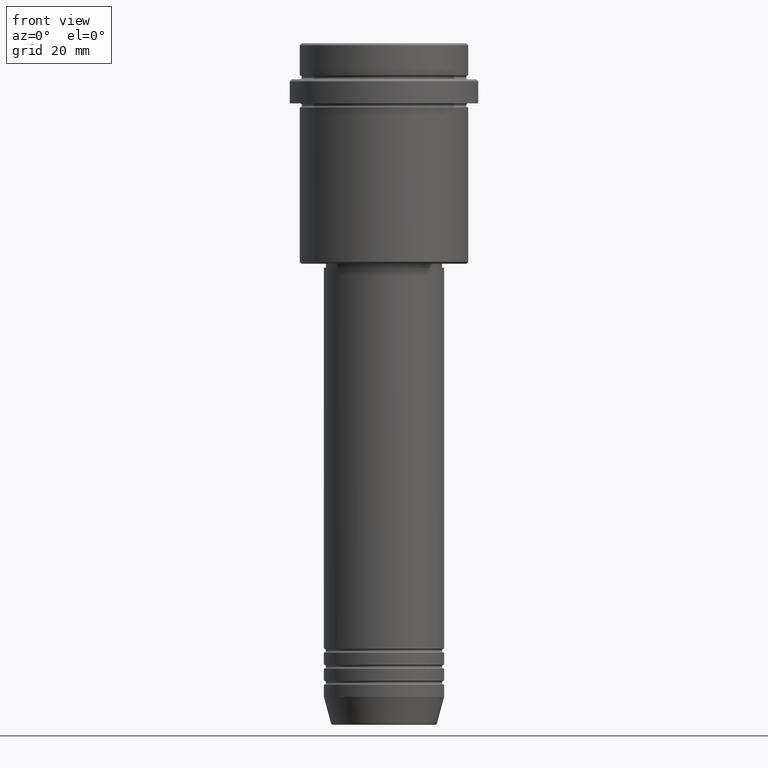
[diagram: clean part render]
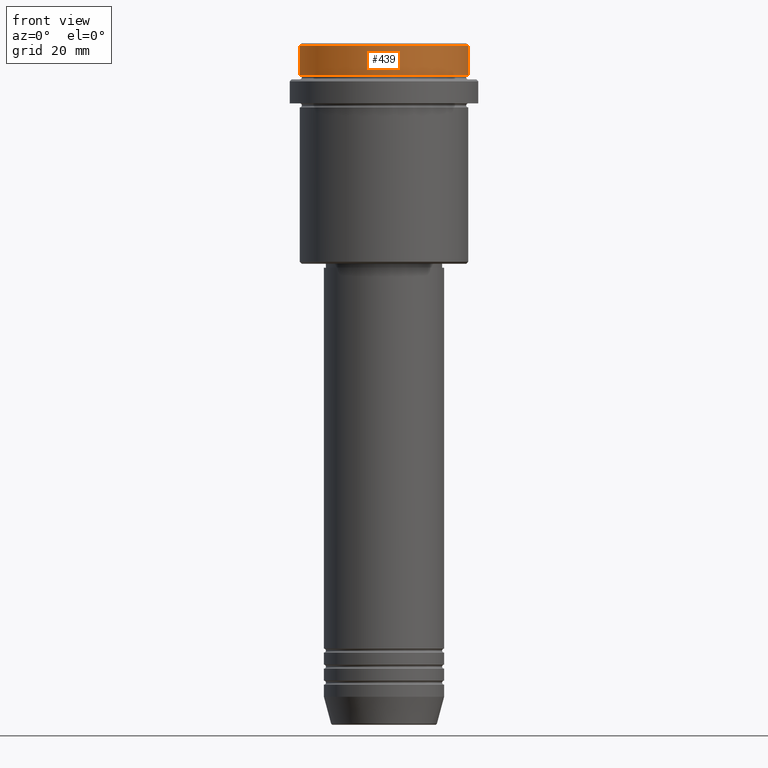
[diagram: same view with one face highlighted and labeled with its STEP entity id]
A machine part, front view. The second image highlights one B-rep face of the part: STEP entity #439.
In plain terms, the highlighted cylindrical surface (partial cylindrical patch) has radius 21 mm, axis along (-0, -0, 1).
Its self-contained STEP definition (entity closure, byte-faithful):
#15 = CARTESIAN_POINT ( 'NONE',  ( -20.99999999999999645, 2.571758278209441267E-15, -7.999999999999998224 ) ) ;
#30 = EDGE_CURVE ( 'NONE', #260, #348, #718, .T. ) ;
#63 = VECTOR ( 'NONE', #804, 1000.000000000000000 ) ;
#105 = ORIENTED_EDGE ( 'NONE', *, *, #647, .T. ) ;
#110 = ORIENTED_EDGE ( 'NONE', *, *, #1124, .T. ) ;
#133 = AXIS2_PLACEMENT_3D ( 'NONE', #1378, #945, #1388 ) ;
#162 = DIRECTION ( 'NONE',  ( 0.000000000000000000, 0.000000000000000000, -1.000000000000000000 ) ) ;
#165 = DIRECTION ( 'NONE',  ( 1.000000000000000000, 0.000000000000000000, 0.000000000000000000 ) ) ;
#225 = EDGE_LOOP ( 'NONE', ( #771, #105, #110, #335 ) ) ;
#254 = VERTEX_POINT ( 'NONE', #15 ) ;
#260 = VERTEX_POINT ( 'NONE', #776 ) ;
#268 = CARTESIAN_POINT ( 'NONE',  ( 0.000000000000000000, 0.000000000000000000, -0.5000000000000073275 ) ) ;
#335 = ORIENTED_EDGE ( 'NONE', *, *, #30, .T. ) ;
#348 = VERTEX_POINT ( 'NONE', #969 ) ;
#369 = CYLINDRICAL_SURFACE ( 'NONE', #419, 20.99999999999999645 ) ;
#372 = DIRECTION ( 'NONE',  ( 1.000000000000000000, 0.000000000000000000, 0.000000000000000000 ) ) ;
#382 = EDGE_CURVE ( 'NONE', #254, #348, #481, .T. ) ;
#396 = DIRECTION ( 'NONE',  ( -0.000000000000000000, -0.000000000000000000, 1.000000000000000000 ) ) ;
#419 = AXIS2_PLACEMENT_3D ( 'NONE', #1336, #790, #165 ) ;
#439 = ADVANCED_FACE ( 'NONE', ( #1121 ), #369, .T. ) ;
#481 = LINE ( 'NONE', #1144, #63 ) ;
#607 = CIRCLE ( 'NONE', #133, 20.99999999999999645 ) ;
#647 = EDGE_CURVE ( 'NONE', #254, #1335, #607, .T. ) ;
#664 = CARTESIAN_POINT ( 'NONE',  ( 20.99999999999999645, 0.000000000000000000, -7.999999999999998224 ) ) ;
#718 = CIRCLE ( 'NONE', #1133, 20.99999999999999645 ) ;
#732 = CARTESIAN_POINT ( 'NONE',  ( 20.99999999999999645, 0.000000000000000000, 0.000000000000000000 ) ) ;
#771 = ORIENTED_EDGE ( 'NONE', *, *, #382, .F. ) ;
#776 = CARTESIAN_POINT ( 'NONE',  ( 20.99999999999999645, 0.000000000000000000, -0.5000000000000073275 ) ) ;
#790 = DIRECTION ( 'NONE',  ( -0.000000000000000000, -0.000000000000000000, 1.000000000000000000 ) ) ;
#804 = DIRECTION ( 'NONE',  ( -0.000000000000000000, -0.000000000000000000, 1.000000000000000000 ) ) ;
#945 = DIRECTION ( 'NONE',  ( -0.000000000000000000, -0.000000000000000000, 1.000000000000000000 ) ) ;
#958 = LINE ( 'NONE', #732, #1247 ) ;
#969 = CARTESIAN_POINT ( 'NONE',  ( -20.99999999999999645, 2.571758278209441267E-15, -0.5000000000000073275 ) ) ;
#1121 = FACE_OUTER_BOUND ( 'NONE', #225, .T. ) ;
#1124 = EDGE_CURVE ( 'NONE', #1335, #260, #958, .T. ) ;
#1133 = AXIS2_PLACEMENT_3D ( 'NONE', #268, #162, #372 ) ;
#1144 = CARTESIAN_POINT ( 'NONE',  ( -20.99999999999999645, 2.571758278209441267E-15, 0.000000000000000000 ) ) ;
#1247 = VECTOR ( 'NONE', #396, 1000.000000000000000 ) ;
#1335 = VERTEX_POINT ( 'NONE', #664 ) ;
#1336 = CARTESIAN_POINT ( 'NONE',  ( 0.000000000000000000, 0.000000000000000000, 0.000000000000000000 ) ) ;
#1378 = CARTESIAN_POINT ( 'NONE',  ( 0.000000000000000000, 0.000000000000000000, -7.999999999999998224 ) ) ;
#1388 = DIRECTION ( 'NONE',  ( 1.000000000000000000, 0.000000000000000000, 0.000000000000000000 ) ) ;